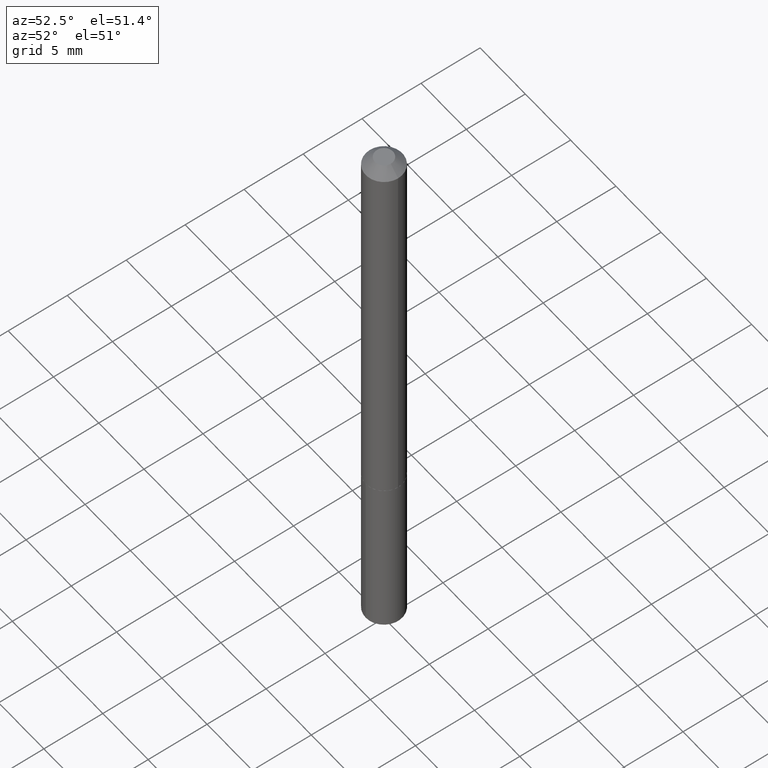
[diagram: clean part render]
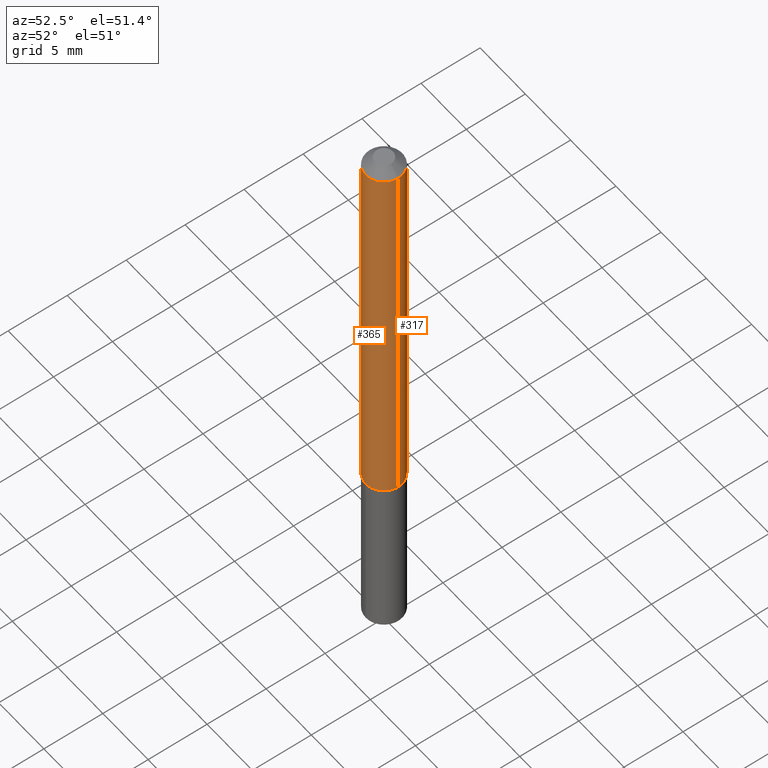
[diagram: same view with one multi-face feature highlighted, each face labeled with its STEP entity id]
A machine part, auxiliary view. The highlighted faces form ONE feature: a constant-radius fillet chain: 2 tangent blend faces with common blend radius 1.5494 mm. The faces share edges in the B-rep.
Their STEP definitions:
[1] entity #365 (Cylinder):
#11 = EDGE_LOOP ( 'NONE', ( #50, #220, #386, #389 ) ) ;
#15 = DIRECTION ( 'NONE',  ( -2.445468806185136877E-29, 3.491481338843145188E-15, 1.000000000000000000 ) ) ;
#23 = AXIS2_PLACEMENT_3D ( 'NONE', #261, #374, #225 ) ;
#40 = CARTESIAN_POINT ( 'NONE',  ( -0.06100000000000016520, -4.251787739779952795E-15, -1.341899999999999649 ) ) ;
#44 = VERTEX_POINT ( 'NONE', #195 ) ;
#45 = DIRECTION ( 'NONE',  ( -2.445468806185136597E-29, 3.491481338843145583E-15, 1.000000000000000000 ) ) ;
#50 = ORIENTED_EDGE ( 'NONE', *, *, #215, .F. ) ;
#51 = DIRECTION ( 'NONE',  ( 1.000000000000000000, -6.982962677686265922E-15, 0.000000000000000000 ) ) ;
#70 = AXIS2_PLACEMENT_3D ( 'NONE', #275, #271, #95 ) ;
#80 = CARTESIAN_POINT ( 'NONE',  ( 0.06100000000000016520, -5.111179531932479308E-15, -1.341899999999999649 ) ) ;
#90 = VERTEX_POINT ( 'NONE', #40 ) ;
#95 = DIRECTION ( 'NONE',  ( 1.000000000000000000, -6.982962677686266711E-15, 4.876176775795935793E-29 ) ) ;
#112 = CIRCLE ( 'NONE', #23, 0.06099999999999999173 ) ;
#143 = CARTESIAN_POINT ( 'NONE',  ( -0.06100000000000008193, 4.334310688136616956E-16, -3.000550405055496697E-30 ) ) ;
#149 = EDGE_CURVE ( 'NONE', #90, #256, #340, .T. ) ;
#172 = CARTESIAN_POINT ( 'NONE',  ( 0.06100000000000008193, -4.259607233388628452E-16, 2.974467833235524715E-30 ) ) ;
#195 = CARTESIAN_POINT ( 'NONE',  ( -0.06099999999999999173, -1.963732731402569410E-15, -0.03125000000000019429 ) ) ;
#205 = DIRECTION ( 'NONE',  ( -2.445468806185136877E-29, 3.491481338843145188E-15, 1.000000000000000000 ) ) ;
#208 = CARTESIAN_POINT ( 'NONE',  ( 3.281574591019834273E-29, -4.685218808593615871E-15, -1.341899999999999649 ) ) ;
#213 = AXIS2_PLACEMENT_3D ( 'NONE', #208, #45, #51 ) ;
#215 = EDGE_CURVE ( 'NONE', #90, #44, #352, .T. ) ;
#216 = CYLINDRICAL_SURFACE ( 'NONE', #70, 0.06100000000000008193 ) ;
#220 = ORIENTED_EDGE ( 'NONE', *, *, #149, .T. ) ;
#225 = DIRECTION ( 'NONE',  ( 1.000000000000000000, -6.982962677686268288E-15, 0.000000000000000000 ) ) ;
#241 = FACE_OUTER_BOUND ( 'NONE', #11, .T. ) ;
#250 = VERTEX_POINT ( 'NONE', #382 ) ;
#253 = EDGE_CURVE ( 'NONE', #44, #250, #112, .T. ) ;
#256 = VERTEX_POINT ( 'NONE', #80 ) ;
#261 = CARTESIAN_POINT ( 'NONE',  ( 7.642090019328599159E-31, -1.091087918388489774E-16, -0.03125000000000019429 ) ) ;
#271 = DIRECTION ( 'NONE',  ( -2.445468806185136597E-29, 3.491481338843145583E-15, 1.000000000000000000 ) ) ;
#275 = CARTESIAN_POINT ( 'NONE',  ( 0.000000000000000000, 0.000000000000000000, 0.000000000000000000 ) ) ;
#283 = EDGE_CURVE ( 'NONE', #256, #250, #290, .T. ) ;
#285 = VECTOR ( 'NONE', #15, 39.37007874015748143 ) ;
#290 = LINE ( 'NONE', #172, #285 ) ;
#326 = VECTOR ( 'NONE', #205, 39.37007874015748143 ) ;
#340 = CIRCLE ( 'NONE', #213, 0.06100000000000016520 ) ;
#352 = LINE ( 'NONE', #143, #326 ) ;
#365 = ADVANCED_FACE ( 'NONE', ( #241 ), #216, .T. ) ;
#374 = DIRECTION ( 'NONE',  ( -2.445468806185136597E-29, 3.491481338843145583E-15, 1.000000000000000000 ) ) ;
#382 = CARTESIAN_POINT ( 'NONE',  ( 0.06099999999999999173, -5.350695151777112556E-16, -0.03125000000000019429 ) ) ;
#386 = ORIENTED_EDGE ( 'NONE', *, *, #283, .T. ) ;
#389 = ORIENTED_EDGE ( 'NONE', *, *, #253, .F. ) ;
[2] entity #317 (Cylinder):
#3 = CYLINDRICAL_SURFACE ( 'NONE', #385, 0.06100000000000008193 ) ;
#15 = DIRECTION ( 'NONE',  ( -2.445468806185136877E-29, 3.491481338843145188E-15, 1.000000000000000000 ) ) ;
#22 = DIRECTION ( 'NONE',  ( -2.445468806185136597E-29, 3.491481338843145583E-15, 1.000000000000000000 ) ) ;
#38 = DIRECTION ( 'NONE',  ( 1.000000000000000000, -6.982962677686265922E-15, 0.000000000000000000 ) ) ;
#40 = CARTESIAN_POINT ( 'NONE',  ( -0.06100000000000016520, -4.251787739779952795E-15, -1.341899999999999649 ) ) ;
#44 = VERTEX_POINT ( 'NONE', #195 ) ;
#46 = EDGE_CURVE ( 'NONE', #256, #90, #206, .T. ) ;
#80 = CARTESIAN_POINT ( 'NONE',  ( 0.06100000000000016520, -5.111179531932479308E-15, -1.341899999999999649 ) ) ;
#90 = VERTEX_POINT ( 'NONE', #40 ) ;
#92 = CIRCLE ( 'NONE', #306, 0.06099999999999999173 ) ;
#108 = DIRECTION ( 'NONE',  ( -2.445468806185136597E-29, 3.491481338843145583E-15, 1.000000000000000000 ) ) ;
#110 = DIRECTION ( 'NONE',  ( -2.445468806185136597E-29, 3.491481338843145583E-15, 1.000000000000000000 ) ) ;
#130 = CARTESIAN_POINT ( 'NONE',  ( 0.000000000000000000, 0.000000000000000000, 0.000000000000000000 ) ) ;
#138 = ORIENTED_EDGE ( 'NONE', *, *, #239, .F. ) ;
#143 = CARTESIAN_POINT ( 'NONE',  ( -0.06100000000000008193, 4.334310688136616956E-16, -3.000550405055496697E-30 ) ) ;
#164 = CARTESIAN_POINT ( 'NONE',  ( 3.281574591019834273E-29, -4.685218808593615871E-15, -1.341899999999999649 ) ) ;
#172 = CARTESIAN_POINT ( 'NONE',  ( 0.06100000000000008193, -4.259607233388628452E-16, 2.974467833235524715E-30 ) ) ;
#179 = ORIENTED_EDGE ( 'NONE', *, *, #215, .T. ) ;
#195 = CARTESIAN_POINT ( 'NONE',  ( -0.06099999999999999173, -1.963732731402569410E-15, -0.03125000000000019429 ) ) ;
#205 = DIRECTION ( 'NONE',  ( -2.445468806185136877E-29, 3.491481338843145188E-15, 1.000000000000000000 ) ) ;
#206 = CIRCLE ( 'NONE', #355, 0.06100000000000016520 ) ;
#215 = EDGE_CURVE ( 'NONE', #90, #44, #352, .T. ) ;
#223 = ORIENTED_EDGE ( 'NONE', *, *, #46, .T. ) ;
#239 = EDGE_CURVE ( 'NONE', #250, #44, #92, .T. ) ;
#244 = DIRECTION ( 'NONE',  ( 1.000000000000000000, -6.982962677686266711E-15, 4.876176775795935793E-29 ) ) ;
#250 = VERTEX_POINT ( 'NONE', #382 ) ;
#256 = VERTEX_POINT ( 'NONE', #80 ) ;
#268 = ORIENTED_EDGE ( 'NONE', *, *, #283, .F. ) ;
#283 = EDGE_CURVE ( 'NONE', #256, #250, #290, .T. ) ;
#285 = VECTOR ( 'NONE', #15, 39.37007874015748143 ) ;
#286 = CARTESIAN_POINT ( 'NONE',  ( 7.642090019328599159E-31, -1.091087918388489774E-16, -0.03125000000000019429 ) ) ;
#290 = LINE ( 'NONE', #172, #285 ) ;
#306 = AXIS2_PLACEMENT_3D ( 'NONE', #286, #110, #320 ) ;
#317 = ADVANCED_FACE ( 'NONE', ( #390 ), #3, .T. ) ;
#320 = DIRECTION ( 'NONE',  ( 1.000000000000000000, -6.982962677686268288E-15, 0.000000000000000000 ) ) ;
#326 = VECTOR ( 'NONE', #205, 39.37007874015748143 ) ;
#329 = EDGE_LOOP ( 'NONE', ( #223, #179, #138, #268 ) ) ;
#352 = LINE ( 'NONE', #143, #326 ) ;
#355 = AXIS2_PLACEMENT_3D ( 'NONE', #164, #108, #38 ) ;
#382 = CARTESIAN_POINT ( 'NONE',  ( 0.06099999999999999173, -5.350695151777112556E-16, -0.03125000000000019429 ) ) ;
#385 = AXIS2_PLACEMENT_3D ( 'NONE', #130, #22, #244 ) ;
#390 = FACE_OUTER_BOUND ( 'NONE', #329, .T. ) ;